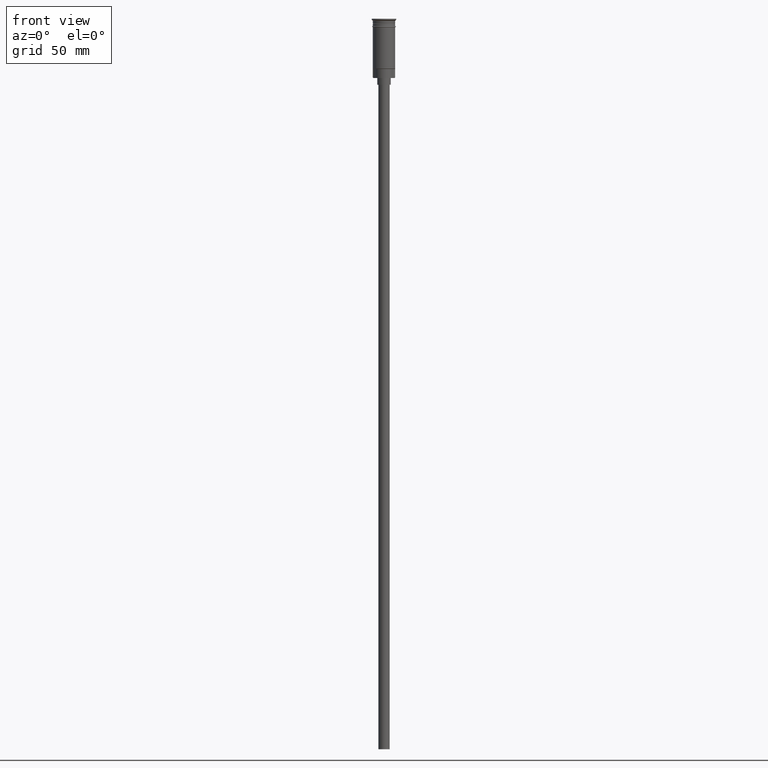
[diagram: clean part render]
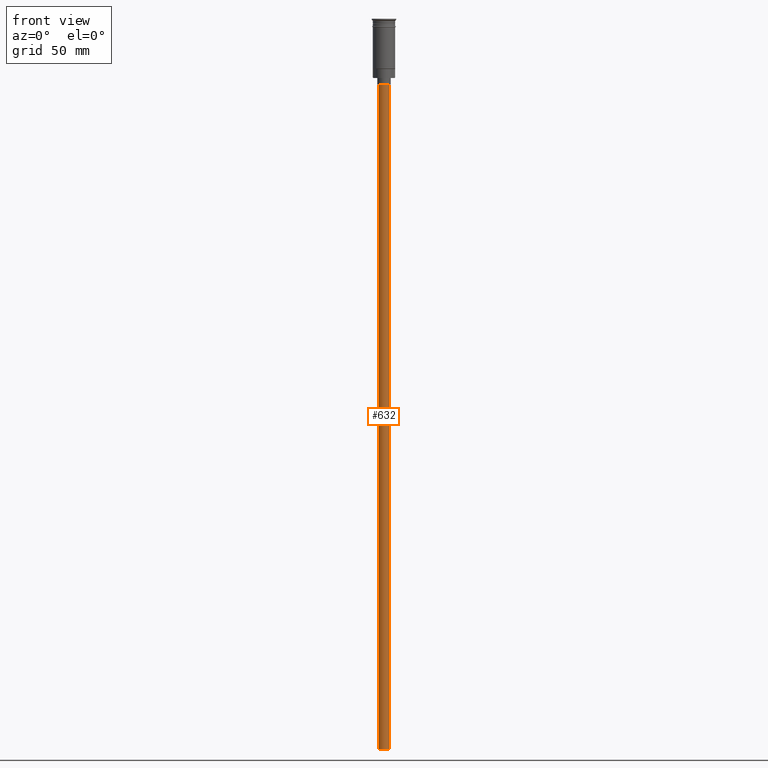
[diagram: same view with one face highlighted and labeled with its STEP entity id]
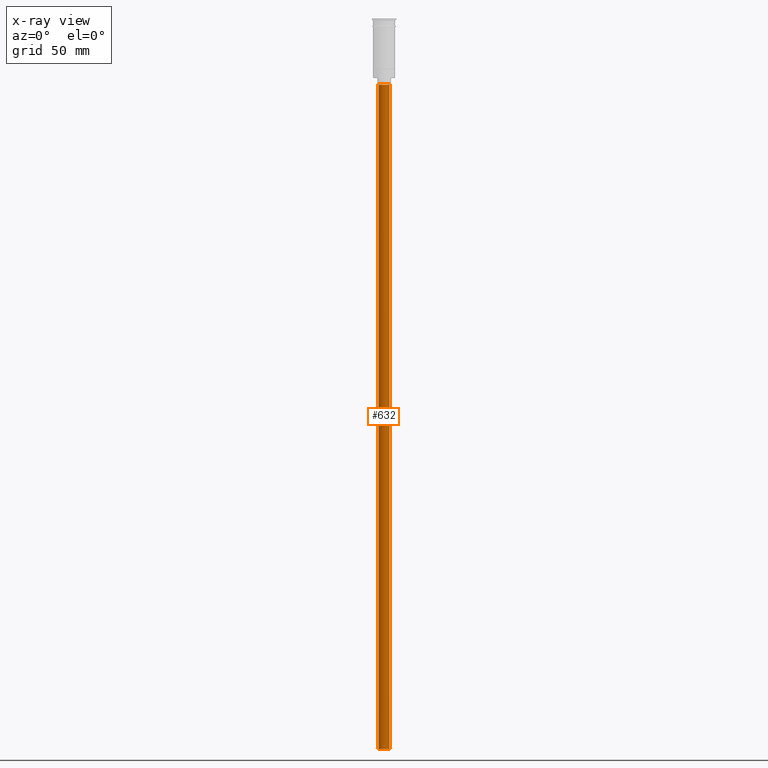
[diagram: x-ray of the same camera — body ghosted, the highlighted face saturated]
A machine part, front view. The second image highlights one B-rep face of the part: STEP entity #632.
The next image is the same camera in x-ray: the body ghosted, the highlighted face saturated — about 0% of this face is hidden behind the body in this view.
In plain terms, the highlighted cylindrical surface (edge-blend (fillet) strip) has radius 2.5 mm, axis along (-0, -0, 1).
Its self-contained STEP definition (entity closure, byte-faithful):
#6 = EDGE_CURVE ( 'NONE', #1238, #1410, #1181, .T. ) ;
#59 = VERTEX_POINT ( 'NONE', #1384 ) ;
#60 = CARTESIAN_POINT ( 'NONE',  ( 0.000000000000000000, 0.000000000000000000, -326.5000000000000000 ) ) ;
#121 = ORIENTED_EDGE ( 'NONE', *, *, #748, .T. ) ;
#122 = LINE ( 'NONE', #1118, #287 ) ;
#200 = CARTESIAN_POINT ( 'NONE',  ( -2.500000000000000000, 3.061616997868383141E-16, -326.5000000000000000 ) ) ;
#204 = ORIENTED_EDGE ( 'NONE', *, *, #1069, .T. ) ;
#230 = DIRECTION ( 'NONE',  ( -0.000000000000000000, -0.000000000000000000, 1.000000000000000000 ) ) ;
#287 = VECTOR ( 'NONE', #230, 1000.000000000000000 ) ;
#302 = LINE ( 'NONE', #1532, #977 ) ;
#326 = DIRECTION ( 'NONE',  ( -0.000000000000000000, -0.000000000000000000, 1.000000000000000000 ) ) ;
#357 = DIRECTION ( 'NONE',  ( -1.000000000000000000, 0.000000000000000000, 0.000000000000000000 ) ) ;
#365 = DIRECTION ( 'NONE',  ( 0.000000000000000000, 0.000000000000000000, -1.000000000000000000 ) ) ;
#422 = DIRECTION ( 'NONE',  ( -0.000000000000000000, -0.000000000000000000, 1.000000000000000000 ) ) ;
#476 = ORIENTED_EDGE ( 'NONE', *, *, #1529, .F. ) ;
#494 = CARTESIAN_POINT ( 'NONE',  ( 0.000000000000000000, 0.000000000000000000, -326.5000000000000000 ) ) ;
#542 = CIRCLE ( 'NONE', #1032, 2.500000000000000000 ) ;
#573 = DIRECTION ( 'NONE',  ( 1.000000000000000000, 0.000000000000000000, 0.000000000000000000 ) ) ;
#618 = CARTESIAN_POINT ( 'NONE',  ( 2.500000000000000000, 0.000000000000000000, -29.50000000000000000 ) ) ;
#632 = ADVANCED_FACE ( 'NONE', ( #703 ), #1047, .T. ) ;
#703 = FACE_OUTER_BOUND ( 'NONE', #1183, .T. ) ;
#740 = AXIS2_PLACEMENT_3D ( 'NONE', #60, #326, #573 ) ;
#748 = EDGE_CURVE ( 'NONE', #1525, #59, #542, .T. ) ;
#867 = AXIS2_PLACEMENT_3D ( 'NONE', #494, #365, #357 ) ;
#977 = VECTOR ( 'NONE', #422, 1000.000000000000000 ) ;
#1032 = AXIS2_PLACEMENT_3D ( 'NONE', #1342, #1601, #1454 ) ;
#1047 = CYLINDRICAL_SURFACE ( 'NONE', #740, 2.500000000000000000 ) ;
#1069 = EDGE_CURVE ( 'NONE', #1238, #1525, #302, .T. ) ;
#1118 = CARTESIAN_POINT ( 'NONE',  ( -2.500000000000000000, 3.061616997868383141E-16, -326.5000000000000000 ) ) ;
#1181 = CIRCLE ( 'NONE', #867, 2.500000000000000000 ) ;
#1183 = EDGE_LOOP ( 'NONE', ( #476, #1419, #204, #121 ) ) ;
#1238 = VERTEX_POINT ( 'NONE', #1252 ) ;
#1252 = CARTESIAN_POINT ( 'NONE',  ( 2.500000000000000000, 0.000000000000000000, -326.5000000000000000 ) ) ;
#1342 = CARTESIAN_POINT ( 'NONE',  ( 0.000000000000000000, 0.000000000000000000, -29.50000000000000000 ) ) ;
#1384 = CARTESIAN_POINT ( 'NONE',  ( -2.500000000000000000, 3.061616997868383141E-16, -29.50000000000000000 ) ) ;
#1410 = VERTEX_POINT ( 'NONE', #200 ) ;
#1419 = ORIENTED_EDGE ( 'NONE', *, *, #6, .F. ) ;
#1454 = DIRECTION ( 'NONE',  ( -1.000000000000000000, 0.000000000000000000, 0.000000000000000000 ) ) ;
#1525 = VERTEX_POINT ( 'NONE', #618 ) ;
#1529 = EDGE_CURVE ( 'NONE', #1410, #59, #122, .T. ) ;
#1532 = CARTESIAN_POINT ( 'NONE',  ( 2.500000000000000000, 0.000000000000000000, -326.5000000000000000 ) ) ;
#1601 = DIRECTION ( 'NONE',  ( 0.000000000000000000, 0.000000000000000000, -1.000000000000000000 ) ) ;